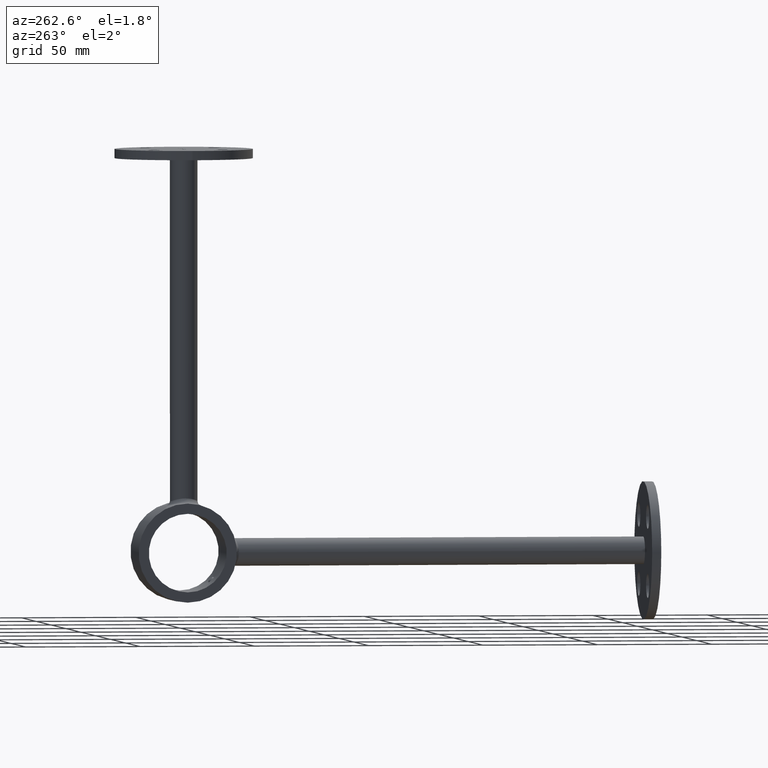
[diagram: clean part render]
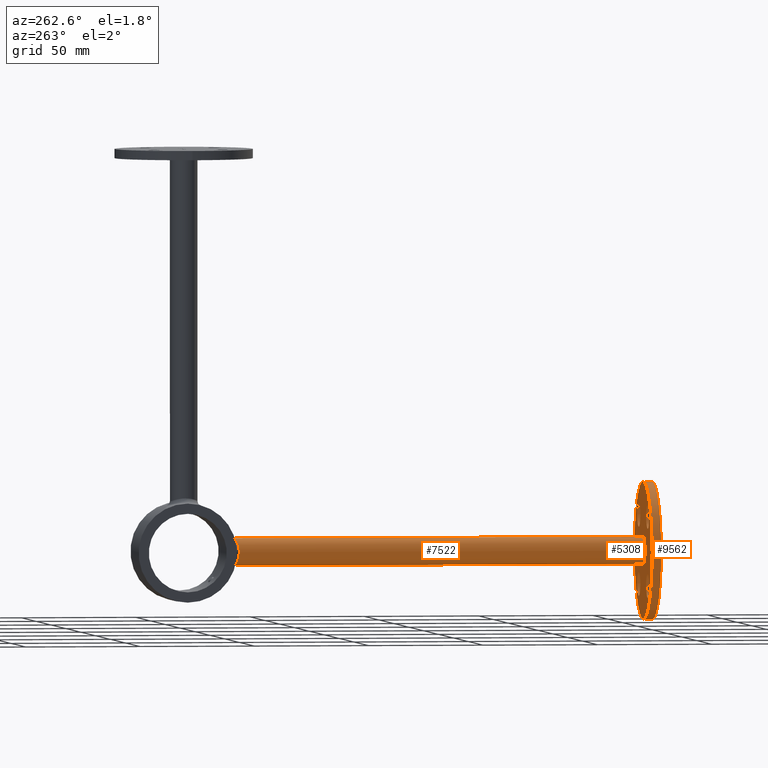
[diagram: same view with one multi-face feature highlighted, each face labeled with its STEP entity id]
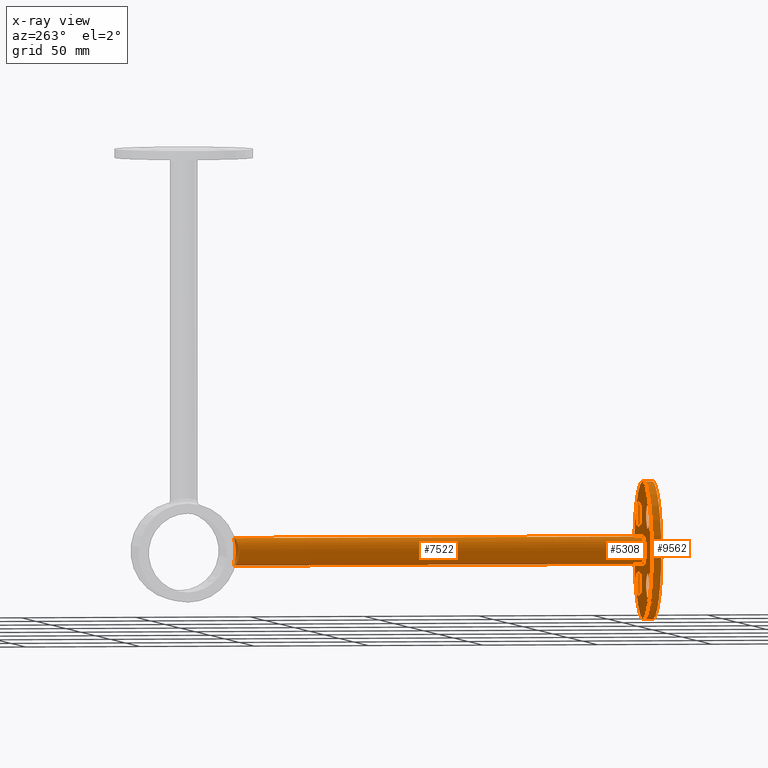
[diagram: x-ray of the same camera — body ghosted, the whole feature saturated]
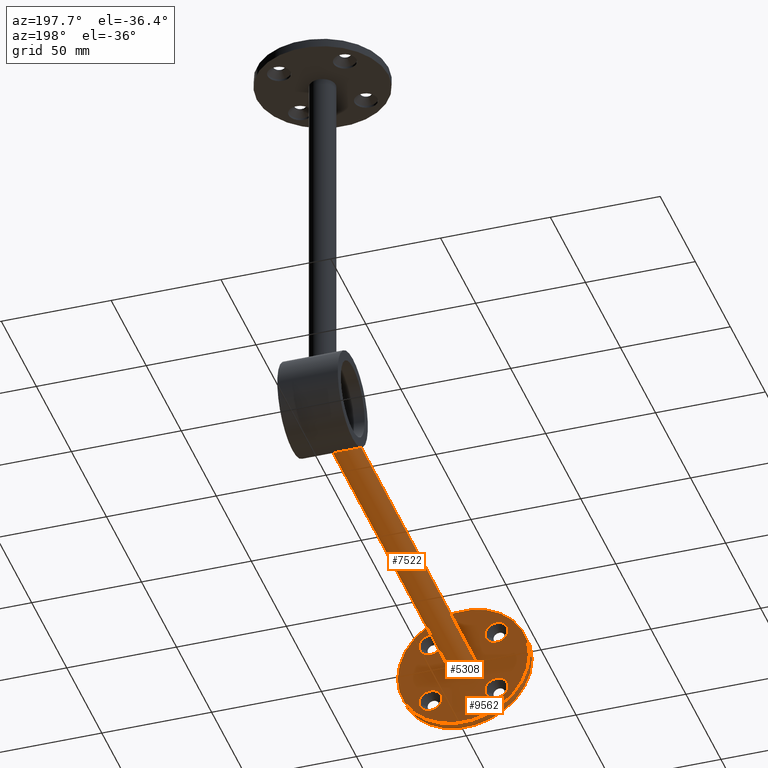
[diagram: same view with one multi-face feature highlighted, each face labeled with its STEP entity id]
A machine part, auxiliary view. The highlighted faces form ONE feature: a stepped (counterbored) hole: 2 coaxial cylindrical walls of radii 6 -> 30 mm joined by 1 annular planar shoulder face(s). The faces share edges in the B-rep.
The next image is the same camera in x-ray: the body ghosted and the whole hole feature saturated, so the bore chain is visible through the body.
A second angle (auxiliary view) of the same feature is appended — it is thin or edge-on in the first view.
Their STEP definitions:
[1] entity #9562 (Cylinder):
#533 = VERTEX_POINT ( 'NONE', #9521 ) ;
#637 = DIRECTION ( 'NONE',  ( 0.000000000000000000, 1.000000000000000000, 0.000000000000000000 ) ) ;
#672 = EDGE_CURVE ( 'NONE', #533, #533, #6723, .T. ) ;
#710 = CARTESIAN_POINT ( 'NONE',  ( 0.000000000000000000, 0.000000000000000000, 30.00000000000000000 ) ) ;
#1035 = CIRCLE ( 'NONE', #10711, 30.00000000000000000 ) ;
#1671 = FACE_OUTER_BOUND ( 'NONE', #5444, .T. ) ;
#2547 = AXIS2_PLACEMENT_3D ( 'NONE', #2695, #7573, #11546 ) ;
#2695 = CARTESIAN_POINT ( 'NONE',  ( 0.000000000000000000, 4.000000000000000000, 0.000000000000000000 ) ) ;
#2745 = ORIENTED_EDGE ( 'NONE', *, *, #9329, .T. ) ;
#3513 = FACE_OUTER_BOUND ( 'NONE', #11563, .T. ) ;
#5444 = EDGE_LOOP ( 'NONE', ( #2745 ) ) ;
#5899 = CARTESIAN_POINT ( 'NONE',  ( 0.000000000000000000, 4.000000000000000000, 0.000000000000000000 ) ) ;
#6387 = VERTEX_POINT ( 'NONE', #710 ) ;
#6723 = CIRCLE ( 'NONE', #2547, 30.00000000000000000 ) ;
#7098 = AXIS2_PLACEMENT_3D ( 'NONE', #5899, #9595, #8697 ) ;
#7573 = DIRECTION ( 'NONE',  ( 0.000000000000000000, 1.000000000000000000, 0.000000000000000000 ) ) ;
#7808 = CYLINDRICAL_SURFACE ( 'NONE', #7098, 30.00000000000000000 ) ;
#8440 = CARTESIAN_POINT ( 'NONE',  ( 0.000000000000000000, 0.000000000000000000, 0.000000000000000000 ) ) ;
#8697 = DIRECTION ( 'NONE',  ( 0.000000000000000000, 0.000000000000000000, -1.000000000000000000 ) ) ;
#9329 = EDGE_CURVE ( 'NONE', #6387, #6387, #1035, .T. ) ;
#9521 = CARTESIAN_POINT ( 'NONE',  ( 0.000000000000000000, 4.000000000000000000, 30.00000000000000000 ) ) ;
#9562 = ADVANCED_FACE ( 'NONE', ( #3513, #1671 ), #7808, .T. ) ;
#9595 = DIRECTION ( 'NONE',  ( -0.000000000000000000, -1.000000000000000000, -0.000000000000000000 ) ) ;
#10711 = AXIS2_PLACEMENT_3D ( 'NONE', #8440, #637, #11484 ) ;
#10718 = ORIENTED_EDGE ( 'NONE', *, *, #672, .F. ) ;
#11484 = DIRECTION ( 'NONE',  ( 0.000000000000000000, 0.000000000000000000, 1.000000000000000000 ) ) ;
#11546 = DIRECTION ( 'NONE',  ( 0.000000000000000000, 0.000000000000000000, 1.000000000000000000 ) ) ;
#11563 = EDGE_LOOP ( 'NONE', ( #10718 ) ) ;
[2] entity #7522 (Cylinder):
#29 = CARTESIAN_POINT ( 'NONE',  ( 0.000000000000000000, 500000.0000000000582, 0.000000000000000000 ) ) ;
#343 = CARTESIAN_POINT ( 'NONE',  ( -1.574722667209679461, 181.5881880137572750, 5.803307776054132283 ) ) ;
#396 = CARTESIAN_POINT ( 'NONE',  ( 4.380060011680900978, 182.2364550622788499, 4.105205853031391960 ) ) ;
#436 = CARTESIAN_POINT ( 'NONE',  ( -6.000062745075251058, 182.9036504951760662, -0.3968259908517776102 ) ) ;
#470 = CARTESIAN_POINT ( 'NONE',  ( -5.383614290453844653, 182.6221124394501487, 2.678165101642945078 ) ) ;
#510 = CARTESIAN_POINT ( 'NONE',  ( 5.804255976908513581, 182.8105903885860357, 1.570565832225676361 ) ) ;
#1332 = CARTESIAN_POINT ( 'NONE',  ( -3.023609152224780328, 181.8442484004445134, 5.196981079217390054 ) ) ;
#1374 = CARTESIAN_POINT ( 'NONE',  ( -5.989916768579838902, 182.8987391493841130, 0.4010955740582489160 ) ) ;
#1416 = CARTESIAN_POINT ( 'NONE',  ( -5.960959147482971510, 182.8845674957467224, -0.7903345854114585123 ) ) ;
#1471 = CARTESIAN_POINT ( 'NONE',  ( -5.920207640070004551, 182.8653221185361986, 0.9949767353437848350 ) ) ;
#1518 = CARTESIAN_POINT ( 'NONE',  ( 3.670495380788004081, 182.0110723717686483, 4.762206133701586630 ) ) ;
#1643 = CARTESIAN_POINT ( 'NONE',  ( -4.763646814871502322, 182.3725852066438904, -3.668876239268912265 ) ) ;
#1658 = EDGE_CURVE ( 'NONE', #10332, #10332, #12382, .T. ) ;
#1718 = CARTESIAN_POINT ( 'NONE',  ( -2.679217972664861058, 181.7679827305315996, -5.382966441499915433 ) ) ;
#1839 = DIRECTION ( 'NONE',  ( 0.000000000000000000, 0.000000000000000000, 1.000000000000000000 ) ) ;
#2041 = DIRECTION ( 'NONE',  ( -0.000000000000000000, -1.000000000000000000, -0.000000000000000000 ) ) ;
#2320 = CARTESIAN_POINT ( 'NONE',  ( -4.511751690115206159, 182.2823703018705999, 3.960014333993998825 ) ) ;
#2366 = CARTESIAN_POINT ( 'NONE',  ( -0.7906207417778206015, 181.5221663832479067, 5.951016297237691433 ) ) ;
#2416 = CARTESIAN_POINT ( 'NONE',  ( 3.665062932003280594, 182.0127914600118970, -4.754492209389490576 ) ) ;
#2456 = CARTESIAN_POINT ( 'NONE',  ( 5.198667854151297618, 182.5435173556288930, 3.020612869347148788 ) ) ;
#2489 = CARTESIAN_POINT ( 'NONE',  ( 0.9933018930051706885, 181.5359009150964766, 5.920555309755852313 ) ) ;
#2534 = CARTESIAN_POINT ( 'NONE',  ( -0.4021259447240697060, 181.5000000000000000, -6.000000000000001776 ) ) ;
#2582 = CARTESIAN_POINT ( 'NONE',  ( -3.971097409696457081, 182.1011753283268888, -4.514419627647238364 ) ) ;
#2615 = CARTESIAN_POINT ( 'NONE',  ( -5.199644964789423618, 182.5438811269946200, -3.019383393351600553 ) ) ;
#2692 = CARTESIAN_POINT ( 'NONE',  ( 0.000000000000000000, 4.000000000000000000, 0.000000000000000000 ) ) ;
#3318 = CARTESIAN_POINT ( 'NONE',  ( -5.688127536059595535, 182.7564371547783537, 1.949634907760326996 ) ) ;
#3358 = CARTESIAN_POINT ( 'NONE',  ( 3.025246425759655633, 181.8446217720242259, 5.196058858758196841 ) ) ;
#3396 = CARTESIAN_POINT ( 'NONE',  ( 1.568905093340495771, 181.5919113145483550, -5.794640890881578521 ) ) ;
#3436 = CARTESIAN_POINT ( 'NONE',  ( 1.948105234340441472, 181.6426097106545399, -5.678398739268138762 ) ) ;
#3484 = CARTESIAN_POINT ( 'NONE',  ( -0.9899812745032079420, 181.5356544348409784, 5.921103801800136957 ) ) ;
#3526 = CARTESIAN_POINT ( 'NONE',  ( -3.666640626723067786, 182.0099769963598533, -4.765166168468553565 ) ) ;
#3610 = CARTESIAN_POINT ( 'NONE',  ( -1.568389718328999649, 181.5918502010193265, -5.794779529640801563 ) ) ;
#3662 = EDGE_CURVE ( 'NONE', #4063, #4063, #8608, .T. ) ;
#3873 = EDGE_LOOP ( 'NONE', ( #5436 ) ) ;
#4063 = VERTEX_POINT ( 'NONE', #11466 ) ;
#4295 = CARTESIAN_POINT ( 'NONE',  ( 4.759067251796836651, 182.3722563158574133, 3.659122219064468329 ) ) ;
#4333 = CARTESIAN_POINT ( 'NONE',  ( 0.3981833352455522723, 181.5045134022045659, 5.990078082225438472 ) ) ;
#4373 = AXIS2_PLACEMENT_3D ( 'NONE', #29, #2041, #9864 ) ;
#4382 = CARTESIAN_POINT ( 'NONE',  ( 5.999708425882474216, 182.9034794534121318, -0.4012224188447878204 ) ) ;
#4434 = CARTESIAN_POINT ( 'NONE',  ( 2.679385151443153479, 181.7680193289932618, -5.382877207405719844 ) ) ;
#4503 = CARTESIAN_POINT ( 'NONE',  ( -0.7967292493714107637, 181.5183334317718788, -5.959939396892399266 ) ) ;
#4887 = FACE_OUTER_BOUND ( 'NONE', #3873, .T. ) ;
#5154 = CARTESIAN_POINT ( 'NONE',  ( 0.4021259447240587703, 181.5000000000000284, -6.000000000000000000 ) ) ;
#5232 = CARTESIAN_POINT ( 'NONE',  ( -3.668341829027693457, 182.0104681364273347, 4.763831742260292934 ) ) ;
#5277 = CARTESIAN_POINT ( 'NONE',  ( 3.968520858140266672, 182.1003592141350396, 4.516791494552601094 ) ) ;
#5325 = CARTESIAN_POINT ( 'NONE',  ( 1.953621634110399130, 181.6397682413323480, 5.686505472399260519 ) ) ;
#5370 = CARTESIAN_POINT ( 'NONE',  ( 6.000288370525019843, 182.9037594121373616, 0.3924539406491243110 ) ) ;
#5411 = CARTESIAN_POINT ( 'NONE',  ( 4.763959210708974545, 182.3726913461036077, -3.668597354930243970 ) ) ;
#5436 = ORIENTED_EDGE ( 'NONE', *, *, #1658, .T. ) ;
#5456 = CARTESIAN_POINT ( 'NONE',  ( -4.878909776184769953E-16, 181.5000000000000000, -6.000000000000000888 ) ) ;
#5504 = CARTESIAN_POINT ( 'NONE',  ( -3.021222812818060266, 181.8436860576148888, -5.198391560277190848 ) ) ;
#5569 = EDGE_LOOP ( 'NONE', ( #7274 ) ) ;
#6126 = CARTESIAN_POINT ( 'NONE',  ( 0.7970721773720399472, 181.5183513578107863, -5.959900234603167313 ) ) ;
#6257 = CARTESIAN_POINT ( 'NONE',  ( 5.689234329912168597, 182.7569386721147282, 1.946549266806400391 ) ) ;
#6300 = CARTESIAN_POINT ( 'NONE',  ( -5.949923524447245704, 182.8795424302737160, 0.7989934963892607600 ) ) ;
#6337 = CARTESIAN_POINT ( 'NONE',  ( -0.3941899321619114493, 181.5043900807490047, 5.990349774821174478 ) ) ;
#6377 = CARTESIAN_POINT ( 'NONE',  ( -4.873519063061618084, 182.4157546636969016, 3.505173733605247310 ) ) ;
#6423 = CARTESIAN_POINT ( 'NONE',  ( 5.385141608245270106, 182.6227896973018687, -2.674394826752510390 ) ) ;
#7210 = CARTESIAN_POINT ( 'NONE',  ( -2.673569745390588892, 181.7668508421497506, 5.385695031861846616 ) ) ;
#7250 = CARTESIAN_POINT ( 'NONE',  ( 4.874761195981273332, 182.4162300877408995, 3.503464809758781939 ) ) ;
#7274 = ORIENTED_EDGE ( 'NONE', *, *, #3662, .T. ) ;
#7299 = CARTESIAN_POINT ( 'NONE',  ( 5.384475155504279797, 182.6224789673726718, 2.676540417873951583 ) ) ;
#7345 = CARTESIAN_POINT ( 'NONE',  ( -5.197055388081388116, 182.5428585296423591, 3.023299379211175086 ) ) ;
#7382 = CARTESIAN_POINT ( 'NONE',  ( 4.511867121467676434, 182.2824065312982214, 3.959918130390494895 ) ) ;
#7522 = ADVANCED_FACE ( 'NONE', ( #4887, #8864 ), #12702, .T. ) ;
#7588 = CARTESIAN_POINT ( 'NONE',  ( -1.376899416627077155, 181.5703950956170729, -5.843206463436878551 ) ) ;
#8187 = CARTESIAN_POINT ( 'NONE',  ( -3.966959264546193964, 182.0998536257329476, 4.518291558315074674 ) ) ;
#8235 = CARTESIAN_POINT ( 'NONE',  ( -5.999968515225607035, 182.9036050072549244, 0.1998343545671826260 ) ) ;
#8279 = CARTESIAN_POINT ( 'NONE',  ( 3.021908628531113639, 181.8438216973902968, -5.198080842371870069 ) ) ;
#8311 = CARTESIAN_POINT ( 'NONE',  ( -5.843858709559025755, 182.8292823742462758, -1.374311122499451310 ) ) ;
#8356 = CARTESIAN_POINT ( 'NONE',  ( 1.578642772040112163, 181.5886453076096245, 5.802273890845525806 ) ) ;
#8468 = CARTESIAN_POINT ( 'NONE',  ( -5.385727149656735158, 182.6230365225502794, -2.673370981755673448 ) ) ;
#8512 = CARTESIAN_POINT ( 'NONE',  ( -5.678658203664157966, 182.7530135993953877, -1.947307720431447731 ) ) ;
#8608 = CIRCLE ( 'NONE', #10324, 6.000000000000000888 ) ;
#8864 = FACE_OUTER_BOUND ( 'NONE', #5569, .T. ) ;
#9169 = CARTESIAN_POINT ( 'NONE',  ( -4.758081259157144416, 182.3718922364629691, 3.660366043164657857 ) ) ;
#9206 = CARTESIAN_POINT ( 'NONE',  ( 3.507330221272225934, 181.9689515892131908, -4.872025119979020324 ) ) ;
#9254 = CARTESIAN_POINT ( 'NONE',  ( 5.610836905936964492, 182.7223414977191851, -2.134606210177763863 ) ) ;
#9303 = CARTESIAN_POINT ( 'NONE',  ( 1.377382291658055591, 181.5704448606867629, -5.843094363281982950 ) ) ;
#9350 = CARTESIAN_POINT ( 'NONE',  ( 0.7941262224587614105, 181.5223803543601093, 5.950541741123116957 ) ) ;
#9467 = CARTESIAN_POINT ( 'NONE',  ( -2.135274881458467000, 181.6718223217549166, -5.610635912662100822 ) ) ;
#9501 = CARTESIAN_POINT ( 'NONE',  ( -5.611836747103256862, 182.7227882917093780, -2.132025013460737473 ) ) ;
#9864 = DIRECTION ( 'NONE',  ( 0.000000000000000000, 0.000000000000000000, -1.000000000000000000 ) ) ;
#10144 = CARTESIAN_POINT ( 'NONE',  ( 5.677606912956134622, 182.7525365302537352, -1.950336362588136696 ) ) ;
#10201 = CARTESIAN_POINT ( 'NONE',  ( -4.380128587320248457, 182.2364723391920052, 4.105168043048601945 ) ) ;
#10245 = CARTESIAN_POINT ( 'NONE',  ( 4.517930443560417508, 182.2820989558308611, -3.967033613394726377 ) ) ;
#10281 = CARTESIAN_POINT ( 'NONE',  ( 2.135566464253779273, 181.6718703505885344, -5.610523489987378376 ) ) ;
#10317 = CARTESIAN_POINT ( 'NONE',  ( 5.793609328801323066, 182.8057673738032065, -1.572616650842495467 ) ) ;
#10324 = AXIS2_PLACEMENT_3D ( 'NONE', #2692, #12576, #1839 ) ;
#10332 = VERTEX_POINT ( 'NONE', #10438 ) ;
#10418 = CARTESIAN_POINT ( 'NONE',  ( -5.794636368601067566, 182.8062440994123676, -1.568870838463122919 ) ) ;
#10438 = CARTESIAN_POINT ( 'NONE',  ( 0.000000000000000000, 181.5000000000000000, -6.000000000000000888 ) ) ;
#11110 = CARTESIAN_POINT ( 'NONE',  ( 5.960438077081251507, 182.8843160768003031, -0.7942411006639199522 ) ) ;
#11158 = CARTESIAN_POINT ( 'NONE',  ( 5.842965656933258423, 182.8288634952189966, -1.378101077959998477 ) ) ;
#11201 = CARTESIAN_POINT ( 'NONE',  ( 5.960073473442239589, 182.8841442592415092, 0.7959828327313903662 ) ) ;
#11240 = CARTESIAN_POINT ( 'NONE',  ( 2.675336810444012059, 181.7672376507103138, 5.384752076704569568 ) ) ;
#11284 = CARTESIAN_POINT ( 'NONE',  ( 4.108676799475495578, 182.1466839411795036, -4.376761103043575574 ) ) ;
#11361 = CARTESIAN_POINT ( 'NONE',  ( -1.947551792592096209, 181.6425279471823728, -5.678587687169714293 ) ) ;
#11442 = CARTESIAN_POINT ( 'NONE',  ( -4.517851234902616753, 182.2820587303005766, -3.967192890580624631 ) ) ;
#11466 = CARTESIAN_POINT ( 'NONE',  ( 0.000000000000000000, 4.000000000000000000, 6.000000000000000888 ) ) ;
#11965 = CARTESIAN_POINT ( 'NONE',  ( -4.878909776184769953E-16, 181.5000000000000000, -6.000000000000000888 ) ) ;
#12090 = CARTESIAN_POINT ( 'NONE',  ( 3.965495599872093990, 182.1016101894693122, -4.506964290083169011 ) ) ;
#12124 = CARTESIAN_POINT ( 'NONE',  ( -5.803132765902655699, 182.8100671407012783, 1.574483700449582857 ) ) ;
#12171 = CARTESIAN_POINT ( 'NONE',  ( 0.002117913490334038043, 181.4955485787135103, 6.009785366057640132 ) ) ;
#12221 = CARTESIAN_POINT ( 'NONE',  ( -1.950049678961975674, 181.6392126249349133, 5.687793281165340886 ) ) ;
#12259 = CARTESIAN_POINT ( 'NONE',  ( 5.201107737530648478, 182.5444724872307916, -3.017017105768351470 ) ) ;
#12382 = B_SPLINE_CURVE_WITH_KNOTS ( 'NONE', 3,
 ( #11965, #5154, #6126, #9303, #3396, #3436, #10281, #4434, #8279, #9206, #2416, #12090, #11284, #10245, #5411, #12259, #6423, #9254, #10144, #10317, #11158, #11110, #4382, #5370, #11201, #510, #6257, #7299, #2456, #7250, #4295, #7382, #396, #5277, #1518, #3358, #11240, #5325, #8356, #2489, #9350, #4333, #12171, #6337, #2366, #3484, #343, #12221, #7210, #1332, #5232, #8187, #10201, #2320, #9169, #6377, #7345, #470, #3318, #12124, #1471, #6300, #1374, #8235, #436, #1416, #8311, #10418, #8512, #9501, #8468, #2615, #1643, #11442, #2582, #3526, #5504, #1718, #9467, #11361, #3610, #7588, #4503, #2534, #5456 ),
 .UNSPECIFIED., .T., .F.,
 ( 4, 2, 2, 2, 2, 2, 2, 2, 2, 2, 2, 2, 2, 2, 2, 2, 2, 2, 2, 2, 2, 1, 2, 2, 2, 2, 2, 2, 2, 2, 2, 2, 2, 2, 2, 2, 2, 2, 2, 2, 2, 2, 4 ),
 ( 0.000000000000000000, 0.001206370934178786639, 0.001809556401268176164, 0.002412741868357565905, 0.003619112802536360134, 0.004222298269625756814, 0.004825483736715151760, 0.006031854670893942519, 0.007238225605072734145, 0.007841411072162136897, 0.008444596539251539649, 0.009650967473430345153, 0.01085733840760915066, 0.01206370934178795616, 0.01327008027596676167, 0.01387326574305615401, 0.01447645121014554635, 0.01568282214432435012, 0.01688919307850314869, 0.01809556401268195072, 0.01869874947977134827, 0.01930193494686074582, 0.01990512041395014337, 0.02050830588103953744, 0.02171467681521832560, 0.02292104774939711029, 0.02412741868357589844, 0.02473060415066530293, 0.02533378961775470742, 0.02654016055193353721, 0.02774653148611236353, 0.02834971695320178536, 0.02895290242029120373, 0.03015927335447003699, 0.03076245882155945882, 0.03136564428864888066, 0.03257201522282769657, 0.03377838615700651942, 0.03498475709118533533, 0.03619112802536415818, 0.03679431349245356614, 0.03739749895954297410, 0.03860386989372179001 ),
 .UNSPECIFIED. ) ;
#12576 = DIRECTION ( 'NONE',  ( 0.000000000000000000, 1.000000000000000000, 0.000000000000000000 ) ) ;
#12702 = CYLINDRICAL_SURFACE ( 'NONE', #4373, 6.000000000000000888 ) ;
[3] entity #5308 (Plane):
#387 = ORIENTED_EDGE ( 'NONE', *, *, #1791, .F. ) ;
#533 = VERTEX_POINT ( 'NONE', #9521 ) ;
#659 = CARTESIAN_POINT ( 'NONE',  ( 15.00000000000000178, 4.000000000000001776, -15.00000000000000000 ) ) ;
#672 = EDGE_CURVE ( 'NONE', #533, #533, #6723, .T. ) ;
#844 = CIRCLE ( 'NONE', #9627, 5.249999999999997335 ) ;
#1171 = FACE_BOUND ( 'NONE', #8282, .T. ) ;
#1413 = CIRCLE ( 'NONE', #3188, 5.249999999999997335 ) ;
#1791 = EDGE_CURVE ( 'NONE', #2684, #2684, #1413, .T. ) ;
#1839 = DIRECTION ( 'NONE',  ( 0.000000000000000000, 0.000000000000000000, 1.000000000000000000 ) ) ;
#1933 = DIRECTION ( 'NONE',  ( -0.000000000000000000, 1.000000000000000000, -0.000000000000000000 ) ) ;
#2028 = EDGE_CURVE ( 'NONE', #8640, #8640, #7535, .T. ) ;
#2502 = CARTESIAN_POINT ( 'NONE',  ( 0.000000000000000000, 4.000000000000000000, 0.000000000000000000 ) ) ;
#2547 = AXIS2_PLACEMENT_3D ( 'NONE', #2695, #7573, #11546 ) ;
#2550 = PLANE ( 'NONE',  #5982 ) ;
#2684 = VERTEX_POINT ( 'NONE', #11348 ) ;
#2692 = CARTESIAN_POINT ( 'NONE',  ( 0.000000000000000000, 4.000000000000000000, 0.000000000000000000 ) ) ;
#2695 = CARTESIAN_POINT ( 'NONE',  ( 0.000000000000000000, 4.000000000000000000, 0.000000000000000000 ) ) ;
#3010 = DIRECTION ( 'NONE',  ( -0.000000000000000000, 1.000000000000000000, -0.000000000000000000 ) ) ;
#3188 = AXIS2_PLACEMENT_3D ( 'NONE', #11026, #3010, #10098 ) ;
#3662 = EDGE_CURVE ( 'NONE', #4063, #4063, #8608, .T. ) ;
#4063 = VERTEX_POINT ( 'NONE', #11466 ) ;
#4064 = ORIENTED_EDGE ( 'NONE', *, *, #2028, .F. ) ;
#4570 = DIRECTION ( 'NONE',  ( 0.000000000000000000, -0.000000000000000000, 1.000000000000000000 ) ) ;
#4762 = CARTESIAN_POINT ( 'NONE',  ( 15.00000000000000178, 4.000000000000001776, 15.00000000000000000 ) ) ;
#4985 = EDGE_LOOP ( 'NONE', ( #8345 ) ) ;
#4996 = EDGE_CURVE ( 'NONE', #5932, #5932, #5046, .T. ) ;
#5046 = CIRCLE ( 'NONE', #5049, 5.249999999999995559 ) ;
#5049 = AXIS2_PLACEMENT_3D ( 'NONE', #659, #11424, #10536 ) ;
#5308 = ADVANCED_FACE ( 'NONE', ( #11312, #5810, #8997, #11150, #1171, #8688 ), #2550, .T. ) ;
#5810 = FACE_BOUND ( 'NONE', #8082, .T. ) ;
#5932 = VERTEX_POINT ( 'NONE', #8423 ) ;
#5982 = AXIS2_PLACEMENT_3D ( 'NONE', #2502, #9360, #4570 ) ;
#6723 = CIRCLE ( 'NONE', #2547, 30.00000000000000000 ) ;
#7535 = CIRCLE ( 'NONE', #10413, 5.249999999999997335 ) ;
#7573 = DIRECTION ( 'NONE',  ( 0.000000000000000000, 1.000000000000000000, 0.000000000000000000 ) ) ;
#7809 = CARTESIAN_POINT ( 'NONE',  ( -15.00000000000000000, 4.000000000000001776, -15.00000000000000000 ) ) ;
#8082 = EDGE_LOOP ( 'NONE', ( #4064 ) ) ;
#8282 = EDGE_LOOP ( 'NONE', ( #387 ) ) ;
#8337 = VERTEX_POINT ( 'NONE', #10707 ) ;
#8340 = ORIENTED_EDGE ( 'NONE', *, *, #3662, .F. ) ;
#8345 = ORIENTED_EDGE ( 'NONE', *, *, #12522, .F. ) ;
#8423 = CARTESIAN_POINT ( 'NONE',  ( 15.00000000000000178, 4.000000000000001776, -9.750000000000003553 ) ) ;
#8608 = CIRCLE ( 'NONE', #10324, 6.000000000000000888 ) ;
#8611 = EDGE_LOOP ( 'NONE', ( #8340 ) ) ;
#8640 = VERTEX_POINT ( 'NONE', #12485 ) ;
#8688 = FACE_OUTER_BOUND ( 'NONE', #9640, .T. ) ;
#8772 = ORIENTED_EDGE ( 'NONE', *, *, #672, .T. ) ;
#8951 = EDGE_LOOP ( 'NONE', ( #9529 ) ) ;
#8997 = FACE_BOUND ( 'NONE', #8951, .T. ) ;
#9360 = DIRECTION ( 'NONE',  ( 0.000000000000000000, 1.000000000000000000, 0.000000000000000000 ) ) ;
#9521 = CARTESIAN_POINT ( 'NONE',  ( 0.000000000000000000, 4.000000000000000000, 30.00000000000000000 ) ) ;
#9529 = ORIENTED_EDGE ( 'NONE', *, *, #4996, .F. ) ;
#9627 = AXIS2_PLACEMENT_3D ( 'NONE', #7809, #1933, #10864 ) ;
#9640 = EDGE_LOOP ( 'NONE', ( #8772 ) ) ;
#9963 = DIRECTION ( 'NONE',  ( 0.000000000000000000, 0.000000000000000000, 1.000000000000000000 ) ) ;
#10098 = DIRECTION ( 'NONE',  ( 0.000000000000000000, 0.000000000000000000, 1.000000000000000000 ) ) ;
#10324 = AXIS2_PLACEMENT_3D ( 'NONE', #2692, #12576, #1839 ) ;
#10413 = AXIS2_PLACEMENT_3D ( 'NONE', #4762, #11696, #9963 ) ;
#10536 = DIRECTION ( 'NONE',  ( 0.000000000000000000, 0.000000000000000000, 1.000000000000000000 ) ) ;
#10707 = CARTESIAN_POINT ( 'NONE',  ( -15.00000000000000000, 4.000000000000001776, -9.750000000000001776 ) ) ;
#10864 = DIRECTION ( 'NONE',  ( 0.000000000000000000, 0.000000000000000000, 1.000000000000000000 ) ) ;
#11026 = CARTESIAN_POINT ( 'NONE',  ( -15.00000000000000000, 4.000000000000001776, 15.00000000000000000 ) ) ;
#11150 = FACE_BOUND ( 'NONE', #4985, .T. ) ;
#11312 = FACE_BOUND ( 'NONE', #8611, .T. ) ;
#11348 = CARTESIAN_POINT ( 'NONE',  ( -15.00000000000000000, 4.000000000000001776, 20.24999999999999645 ) ) ;
#11424 = DIRECTION ( 'NONE',  ( -0.000000000000000000, 1.000000000000000000, -0.000000000000000000 ) ) ;
#11466 = CARTESIAN_POINT ( 'NONE',  ( 0.000000000000000000, 4.000000000000000000, 6.000000000000000888 ) ) ;
#11546 = DIRECTION ( 'NONE',  ( 0.000000000000000000, 0.000000000000000000, 1.000000000000000000 ) ) ;
#11696 = DIRECTION ( 'NONE',  ( -0.000000000000000000, 1.000000000000000000, -0.000000000000000000 ) ) ;
#12485 = CARTESIAN_POINT ( 'NONE',  ( 15.00000000000000178, 4.000000000000001776, 20.24999999999999645 ) ) ;
#12522 = EDGE_CURVE ( 'NONE', #8337, #8337, #844, .T. ) ;
#12576 = DIRECTION ( 'NONE',  ( 0.000000000000000000, 1.000000000000000000, 0.000000000000000000 ) ) ;